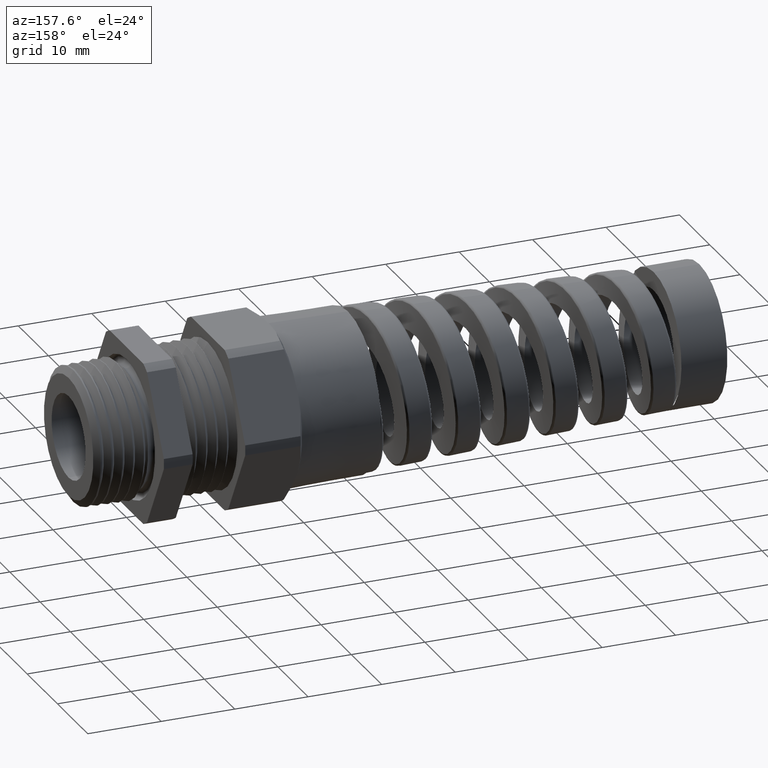
[diagram: clean part render]
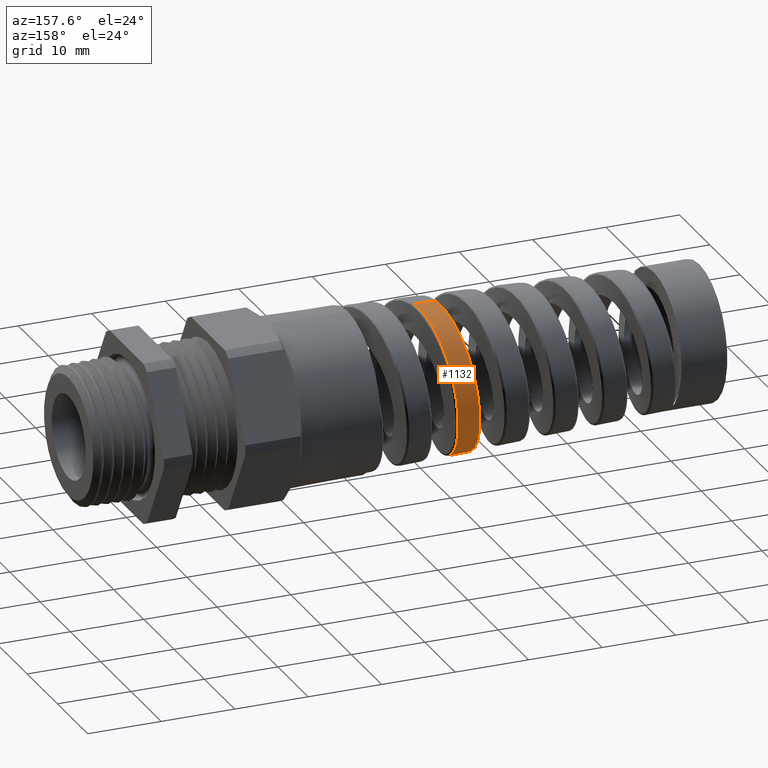
[diagram: same view with one face highlighted and labeled with its STEP entity id]
A machine part, auxiliary view. The second image highlights one B-rep face of the part: STEP entity #1132.
In plain terms, the highlighted conical surface has half-angle 2.001 deg.
Its self-contained STEP definition (entity closure, byte-faithful):
#1132 = ADVANCED_FACE ( 'NONE', ( #1641 ), #1639, .T. ) ;
#1133 = EDGE_LOOP ( 'NONE', ( #1134, #4249, #4254, #1138 ) ) ;
#1134 = ORIENTED_EDGE ( 'NONE', *, *, #1135, .T. ) ;
#1135 = EDGE_CURVE ( 'NONE', #1136, #1137, #1634, .T. ) ;
#1136 = VERTEX_POINT ( 'NONE', #1635 ) ;
#1137 = VERTEX_POINT ( 'NONE', #1633 ) ;
#1138 = ORIENTED_EDGE ( 'NONE', *, *, #1139, .F. ) ;
#1139 = EDGE_CURVE ( 'NONE', #1136, #4111, #1660, .T. ) ;
#1622 = CARTESIAN_POINT ( 'NONE',  ( -1.757676384687995300, 0.2747055029688403900, -0.2913719131685808000 ) ) ;
#1623 = CARTESIAN_POINT ( 'NONE',  ( -1.759058356806177300, 0.2649956881061748000, -0.3001691820263497300 ) ) ;
#1624 = CARTESIAN_POINT ( 'NONE',  ( -1.761839789662818000, 0.2446409993342541500, -0.3168552969626592900 ) ) ;
#1625 = CARTESIAN_POINT ( 'NONE',  ( -1.763246332270655100, 0.2339379443826658500, -0.3247779331110995400 ) ) ;
#1626 = CARTESIAN_POINT ( 'NONE',  ( -1.767426118119173700, 0.2010340649914398900, -0.3466946377819063500 ) ) ;
#1627 = CARTESIAN_POINT ( 'NONE',  ( -1.770172773987181500, 0.1779365765844597200, -0.3589794652307891600 ) ) ;
#1628 = CARTESIAN_POINT ( 'NONE',  ( -1.775700000920020800, 0.1294645408837191100, -0.3789620951307783900 ) ) ;
#1629 = CARTESIAN_POINT ( 'NONE',  ( -1.778505050389530800, 0.1038523636255262000, -0.3866649866110647400 ) ) ;
#1630 = CARTESIAN_POINT ( 'NONE',  ( -1.784040528061395800, 0.05239482903104750900, -0.3967309473158000000 ) ) ;
#1631 = CARTESIAN_POINT ( 'NONE',  ( -1.786794380327165500, 0.02635349776805838400, -0.3992199339792716400 ) ) ;
#1632 = CARTESIAN_POINT ( 'NONE',  ( -1.789586655006957700, -6.843371237368457700E-013, -0.3991223958355932200 ) ) ;
#1633 = CARTESIAN_POINT ( 'NONE',  ( -1.657005368434619100, -1.045155905622885300E-014, 0.4037536495823551600 ) ) ;
#1634 = B_SPLINE_CURVE_WITH_KNOTS ( 'NONE', 3,
 ( #1632, #1631, #1630, #1629, #1628, #1627, #1626, #1625, #1624, #1623, #1622, #1697, #1696, #1695, #1694, #1693, #1692, #1691, #1690, #1689, #1688, #1687, #1686, #1685, #1684, #1682, #1681, #1680, #1679, #1678, #1677, #1676, #1675, #1674, #1673, #1672, #1671, #1670, #1669, #1668, #1667, #1666, #1665, #1664, #1663, #1662, #1661 ),
 .UNSPECIFIED., .F., .F.,
 ( 4, 2, 2, 2, 2, 2, 2, 2, 2, 2, 2, 2, 2, 2, 2, 1, 2, 2, 2, 2, 2, 2, 2, 4 ),
 ( 0.2403171629146028700, 0.2423446431943658600, 0.2443721234741288200, 0.2463996037538918000, 0.2474133438937732900, 0.2484270840336547700, 0.2504545643134177300, 0.2524820445931806900, 0.2534957847330622200, 0.2545095248729437000, 0.2565370051527066700, 0.2575507452925881500, 0.2585644854324696300, 0.2605919657122325900, 0.2616057058521140700, 0.2626194459919955500, 0.2636331861318770800, 0.2646469262717585600, 0.2666744065515215300, 0.2676881466914030100, 0.2687018868312844900, 0.2707293671110475000, 0.2717431072509289800, 0.2727568473908104600 ),
 .UNSPECIFIED. ) ;
#1635 = CARTESIAN_POINT ( 'NONE',  ( -1.789586655006957700, -6.843371237368457700E-013, -0.3991223958355932200 ) ) ;
#1636 = DIRECTION ( 'NONE',  ( 0.0000000000000000000, 0.0000000000000000000, -1.000000000000000000 ) ) ;
#1637 = DIRECTION ( 'NONE',  ( 1.000000000000000000, 0.0000000000000000000, 0.0000000000000000000 ) ) ;
#1638 = AXIS2_PLACEMENT_3D ( 'NONE', #1640, #1637, #1636 ) ;
#1639 = CONICAL_SURFACE ( 'NONE', #1638, 0.4350000000000000500, 0.03491723117042448000 ) ;
#1640 = CARTESIAN_POINT ( 'NONE',  ( -0.7624999999999998400, 0.0000000000000000000, 0.0000000000000000000 ) ) ;
#1641 = FACE_OUTER_BOUND ( 'NONE', #1133, .T. ) ;
#1657 = DIRECTION ( 'NONE',  ( 0.9993904554178625300, 0.0000000000000000000, -0.03491013634572582400 ) ) ;
#1658 = VECTOR ( 'NONE', #1657, 39.37007874015748900 ) ;
#1659 = CARTESIAN_POINT ( 'NONE',  ( -0.7624999999999998400, 0.0000000000000000000, -0.4350000000000000500 ) ) ;
#1660 = LINE ( 'NONE', #1659, #1658 ) ;
#1661 = CARTESIAN_POINT ( 'NONE',  ( -1.657005368434619100, -1.045155905622885300E-014, 0.4037536495823551600 ) ) ;
#1662 = CARTESIAN_POINT ( 'NONE',  ( -1.658371320478617200, 0.01308654024180015300, 0.4037059349260475600 ) ) ;
#1663 = CARTESIAN_POINT ( 'NONE',  ( -1.659739546934165600, 0.02619702252936936800, 0.4030234469017363000 ) ) ;
#1664 = CARTESIAN_POINT ( 'NONE',  ( -1.662495398768115700, 0.05246561736201867100, 0.4003546353204999200 ) ) ;
#1665 = CARTESIAN_POINT ( 'NONE',  ( -1.663882048102182500, 0.06561259576020471400, 0.3983601667243852900 ) ) ;
#1666 = CARTESIAN_POINT ( 'NONE',  ( -1.668001962729848400, 0.1042604819288072800, 0.3905479330783626100 ) ) ;
#1667 = CARTESIAN_POINT ( 'NONE',  ( -1.670726518962412100, 0.1292678372884647800, 0.3828963976545886600 ) ) ;
#1668 = CARTESIAN_POINT ( 'NONE',  ( -1.674857485707694500, 0.1656367615162361000, 0.3677644708718886300 ) ) ;
#1669 = CARTESIAN_POINT ( 'NONE',  ( -1.676248411379333000, 0.1776243322363444700, 0.3620759836420270300 ) ) ;
#1670 = CARTESIAN_POINT ( 'NONE',  ( -1.679022959107008500, 0.2009210144487247600, 0.3495740897752496200 ) ) ;
#1671 = CARTESIAN_POINT ( 'NONE',  ( -1.680399936130032600, 0.2121777768618829900, 0.3427969780024681700 ) ) ;
#1672 = CARTESIAN_POINT ( 'NONE',  ( -1.684514141099030500, 0.2448055265678987200, 0.3209327557905303800 ) ) ;
#1673 = CARTESIAN_POINT ( 'NONE',  ( -1.687238908326040400, 0.2650441706690662700, 0.3043271596775806700 ) ) ;
#1674 = CARTESIAN_POINT ( 'NONE',  ( -1.691385943898852800, 0.2930609128151723300, 0.2762942205921041800 ) ) ;
#1675 = CARTESIAN_POINT ( 'NONE',  ( -1.692774731613656500, 0.3019755319785786300, 0.2664450283056383800 ) ) ;
#1676 = CARTESIAN_POINT ( 'NONE',  ( -1.695526887800662600, 0.3186320228506778800, 0.2461268522420849700 ) ) ;
#1677 = CARTESIAN_POINT ( 'NONE',  ( -1.698268374547961200, 0.3342174781932552000, 0.2250908424825781000 ) ) ;
#1678 = CARTESIAN_POINT ( 'NONE',  ( -1.701015565690450900, 0.3476883408739040400, 0.2026409781987540400 ) ) ;
#1679 = CARTESIAN_POINT ( 'NONE',  ( -1.703777972399270800, 0.3600856774619448600, 0.1794748980996789300 ) ) ;
#1680 = CARTESIAN_POINT ( 'NONE',  ( -1.705174315146041700, 0.3657737111681606500, 0.1674669176119389100 ) ) ;
#1681 = CARTESIAN_POINT ( 'NONE',  ( -1.709342906498278600, 0.3809427364951943300, 0.1308606146840056200 ) ) ;
#1682 = CARTESIAN_POINT ( 'NONE',  ( -1.712078538820442300, 0.3885326634087230000, 0.1058080014421086800 ) ) ;
#1684 = CARTESIAN_POINT ( 'NONE',  ( -1.716198943448973500, 0.3962261981106655600, 0.06728907688865601300 ) ) ;
#1685 = CARTESIAN_POINT ( 'NONE',  ( -1.717575471828683500, 0.3981711237360393600, 0.05429168096282201200 ) ) ;
#1686 = CARTESIAN_POINT ( 'NONE',  ( -1.720349852419291100, 0.4007835914049000000, 0.02797328603608080200 ) ) ;
#1687 = CARTESIAN_POINT ( 'NONE',  ( -1.721739850070716600, 0.4014369058049601600, 0.01472709569899253000 ) ) ;
#1688 = CARTESIAN_POINT ( 'NONE',  ( -1.725876037422482600, 0.4014492966867817000, -0.02465714179428349700 ) ) ;
#1689 = CARTESIAN_POINT ( 'NONE',  ( -1.728614527853896200, 0.3989056858254169100, -0.05068512856902430300 ) ) ;
#1690 = CARTESIAN_POINT ( 'NONE',  ( -1.732771810651464900, 0.3912439269858771200, -0.08937490093493692700 ) ) ;
#1691 = CARTESIAN_POINT ( 'NONE',  ( -1.734173525728780900, 0.3880204329783469300, -0.1022829160849231900 ) ) ;
#1692 = CARTESIAN_POINT ( 'NONE',  ( -1.736956549591695900, 0.3803656464040619500, -0.1275368891758709400 ) ) ;
#1693 = CARTESIAN_POINT ( 'NONE',  ( -1.738338316535896100, 0.3759419934830737200, -0.1398917408944027600 ) ) ;
#1694 = CARTESIAN_POINT ( 'NONE',  ( -1.742470221131972900, 0.3609267810546694700, -0.1761584547876194900 ) ) ;
#1695 = CARTESIAN_POINT ( 'NONE',  ( -1.745210396358882500, 0.3486077024557880400, -0.1992797456958297600 ) ) ;
#1696 = CARTESIAN_POINT ( 'NONE',  ( -1.750780478571323200, 0.3191857138988485900, -0.2433194334759710400 ) ) ;
#1697 = CARTESIAN_POINT ( 'NONE',  ( -1.753537900868073200, 0.3024578723546230700, -0.2636449623906354000 ) ) ;
#4109 = EDGE_CURVE ( 'NONE', #4253, #4111, #6236, .T. ) ;
#4111 = VERTEX_POINT ( 'NONE', #6235 ) ;
#4249 = ORIENTED_EDGE ( 'NONE', *, *, #4251, .T. ) ;
#4251 = EDGE_CURVE ( 'NONE', #1137, #4253, #6978, .T. ) ;
#4253 = VERTEX_POINT ( 'NONE', #6974 ) ;
#4254 = ORIENTED_EDGE ( 'NONE', *, *, #4109, .T. ) ;
#6235 = CARTESIAN_POINT ( 'NONE',  ( -1.672253325110319100, 2.163672331936662100E-016, -0.4032210166723082000 ) ) ;
#6236 = B_SPLINE_CURVE_WITH_KNOTS ( 'NONE', 3,
 ( #6321, #6320, #6319, #6318, #6317, #6316, #6315, #6314, #6313, #6312, #6311, #6310, #6309, #6308, #6307, #6306, #6305, #6304, #6303, #6302, #6301, #6299, #6298, #6297, #6296, #6295, #6294, #6293, #6292, #6291, #6290, #6288, #6286, #6283, #6282, #6280, #6278, #6276, #6275, #6273, #6272, #6271, #6270, #6269, #6268, #6267, #6396 ),
 .UNSPECIFIED., .F., .F.,
 ( 4, 2, 2, 2, 2, 2, 2, 2, 2, 2, 2, 2, 2, 2, 2, 2, 2, 1, 2, 2, 2, 2, 2, 4 ),
 ( 0.08931798322508666100, 0.09034380325313291800, 0.09136962328117917400, 0.09342126333727170100, 0.09547290339336421400, 0.09752454344945674100, 0.09855036347750299700, 0.09957618350554925400, 0.1016278235616417800, 0.1036794636177342900, 0.1047052836457805500, 0.1057311036738268200, 0.1077827437299193300, 0.1088085637579655900, 0.1098343837860118500, 0.1118860238421043600, 0.1129118438701506200, 0.1139376638981968700, 0.1149634839262431300, 0.1159893039542893900, 0.1180409440103819000, 0.1190667640384281700, 0.1200925840664744100, 0.1221442241225669200 ),
 .UNSPECIFIED. ) ;
#6267 = CARTESIAN_POINT ( 'NONE',  ( -1.669474649525412900, 0.02658098541876653700, -0.4033180797801294000 ) ) ;
#6268 = CARTESIAN_POINT ( 'NONE',  ( -1.666723335473942600, 0.05288396782081845900, -0.4008108181232418700 ) ) ;
#6269 = CARTESIAN_POINT ( 'NONE',  ( -1.662556129318722300, 0.09191638451919975600, -0.3931763063385762500 ) ) ;
#6270 = CARTESIAN_POINT ( 'NONE',  ( -1.661154911817974500, 0.1049076625887816300, -0.3899653840096049000 ) ) ;
#6271 = CARTESIAN_POINT ( 'NONE',  ( -1.658353191076013200, 0.1305054104453361200, -0.3822642628575531600 ) ) ;
#6272 = CARTESIAN_POINT ( 'NONE',  ( -1.656963283096474200, 0.1430161583221191100, -0.3778089277275875100 ) ) ;
#6273 = CARTESIAN_POINT ( 'NONE',  ( -1.652811750829021700, 0.1797090508877101100, -0.3626844661479475800 ) ) ;
#6275 = CARTESIAN_POINT ( 'NONE',  ( -1.650067710169015100, 0.2030596925114499200, -0.3502734317401868200 ) ) ;
#6276 = CARTESIAN_POINT ( 'NONE',  ( -1.645894998791073800, 0.2363687814566932400, -0.3280828284803549200 ) ) ;
#6278 = CARTESIAN_POINT ( 'NONE',  ( -1.644497158805882100, 0.2471583060657300300, -0.3200921296381089600 ) ) ;
#6280 = CARTESIAN_POINT ( 'NONE',  ( -1.641728877492441200, 0.2676875929102518500, -0.3032618211074427600 ) ) ;
#6282 = CARTESIAN_POINT ( 'NONE',  ( -1.638972713789576200, 0.2872912944294953000, -0.2855037516313535500 ) ) ;
#6283 = CARTESIAN_POINT ( 'NONE',  ( -1.636212797312104600, 0.3050689213068769600, -0.2659194195136450600 ) ) ;
#6286 = CARTESIAN_POINT ( 'NONE',  ( -1.633438308705763300, 0.3219198963335751500, -0.2454102198519423600 ) ) ;
#6288 = CARTESIAN_POINT ( 'NONE',  ( -1.632036162489026900, 0.3299212875651933400, -0.2346317094714256400 ) ) ;
#6290 = CARTESIAN_POINT ( 'NONE',  ( -1.627851572281141300, 0.3521529605770443200, -0.2013472784833027500 ) ) ;
#6291 = CARTESIAN_POINT ( 'NONE',  ( -1.625105935988395000, 0.3645949363991277100, -0.1780128561514686400 ) ) ;
#6292 = CARTESIAN_POINT ( 'NONE',  ( -1.620975077579238000, 0.3797779783941389600, -0.1413456735423682700 ) ) ;
#6293 = CARTESIAN_POINT ( 'NONE',  ( -1.619595593374563800, 0.3842548739361554800, -0.1288437626015044300 ) ) ;
#6294 = CARTESIAN_POINT ( 'NONE',  ( -1.616816205826204300, 0.3920043848639131500, -0.1032654248713770800 ) ) ;
#6295 = CARTESIAN_POINT ( 'NONE',  ( -1.615425669893206600, 0.3952446665303706000, -0.09027430438050893000 ) ) ;
#6296 = CARTESIAN_POINT ( 'NONE',  ( -1.611287520395078900, 0.4029710294434465400, -0.05125213660367952000 ) ) ;
#6297 = CARTESIAN_POINT ( 'NONE',  ( -1.608549148327077100, 0.4055489413576816000, -0.02495658614309329400 ) ) ;
#6298 = CARTESIAN_POINT ( 'NONE',  ( -1.604393094148747400, 0.4055353202994360100, 0.01490184693905047600 ) ) ;
#6299 = CARTESIAN_POINT ( 'NONE',  ( -1.602992137451729300, 0.4048691516254143700, 0.02833067002978280300 ) ) ;
#6301 = CARTESIAN_POINT ( 'NONE',  ( -1.600213297591245500, 0.4022340102405737000, 0.05484721800872313600 ) ) ;
#6302 = CARTESIAN_POINT ( 'NONE',  ( -1.598833334950343200, 0.4002733873327140000, 0.06795526704221667400 ) ) ;
#6303 = CARTESIAN_POINT ( 'NONE',  ( -1.594708105289959700, 0.3925089970751129400, 0.1068382354161642900 ) ) ;
#6304 = CARTESIAN_POINT ( 'NONE',  ( -1.591974803531900400, 0.3848408287942083300, 0.1321759487664014000 ) ) ;
#6305 = CARTESIAN_POINT ( 'NONE',  ( -1.586421611034766900, 0.3643379643482011500, 0.1816269600903739900 ) ) ;
#6306 = CARTESIAN_POINT ( 'NONE',  ( -1.583679578217216600, 0.3517827677120551300, 0.2050341161399817400 ) ) ;
#6307 = CARTESIAN_POINT ( 'NONE',  ( -1.579561687567652600, 0.3297633296161963100, 0.2379905653578922600 ) ) ;
#6308 = CARTESIAN_POINT ( 'NONE',  ( -1.578186849711427500, 0.3218824353393261500, 0.2486290739600550100 ) ) ;
#6309 = CARTESIAN_POINT ( 'NONE',  ( -1.575420205352797300, 0.3050180487091480000, 0.2691974923004985000 ) ) ;
#6310 = CARTESIAN_POINT ( 'NONE',  ( -1.574021861693393000, 0.2959867042986181200, 0.2791687037701337000 ) ) ;
#6311 = CARTESIAN_POINT ( 'NONE',  ( -1.569868498814245100, 0.2677576774264174300, 0.3074061508318566800 ) ) ;
#6312 = CARTESIAN_POINT ( 'NONE',  ( -1.567138889474033500, 0.2473316004122841600, 0.3241764695042534400 ) ) ;
#6313 = CARTESIAN_POINT ( 'NONE',  ( -1.561652944789093000, 0.2033241145619460500, 0.3536645195338733400 ) ) ;
#6314 = CARTESIAN_POINT ( 'NONE',  ( -1.558872113958168900, 0.1795152309944150500, 0.3664322378572459300 ) ) ;
#6315 = CARTESIAN_POINT ( 'NONE',  ( -1.553388713284623400, 0.1306072646230222500, 0.3867765088478047300 ) ) ;
#6316 = CARTESIAN_POINT ( 'NONE',  ( -1.550662651688733000, 0.1053368012158791300, 0.3945165021615078000 ) ) ;
#6317 = CARTESIAN_POINT ( 'NONE',  ( -1.546519350466295300, 0.06619614111494968900, 0.4024222417117298600 ) ) ;
#6318 = CARTESIAN_POINT ( 'NONE',  ( -1.545124470807020000, 0.05289451781401124200, 0.4044343820970117700 ) ) ;
#6319 = CARTESIAN_POINT ( 'NONE',  ( -1.542364663375162900, 0.02643315500187131500, 0.4071177931738256800 ) ) ;
#6320 = CARTESIAN_POINT ( 'NONE',  ( -1.540993150952204800, 0.01321179092175815700, 0.4078061220750886000 ) ) ;
#6321 = CARTESIAN_POINT ( 'NONE',  ( -1.539625648009477700, -1.770506723508822800E-016, 0.4078538909065045900 ) ) ;
#6396 = CARTESIAN_POINT ( 'NONE',  ( -1.672253325110319100, 2.163672331936662100E-016, -0.4032210166723082000 ) ) ;
#6974 = CARTESIAN_POINT ( 'NONE',  ( -1.539625648009477700, -1.770506723508822800E-016, 0.4078538909065045900 ) ) ;
#6975 = DIRECTION ( 'NONE',  ( 0.9993904554178625300, 4.275258673359081200E-018, 0.03491013634572582400 ) ) ;
#6976 = VECTOR ( 'NONE', #6975, 39.37007874015748900 ) ;
#6977 = CARTESIAN_POINT ( 'NONE',  ( -0.7624999999999998400, 5.327213576290987000E-017, 0.4350000000000000500 ) ) ;
#6978 = LINE ( 'NONE', #6977, #6976 ) ;